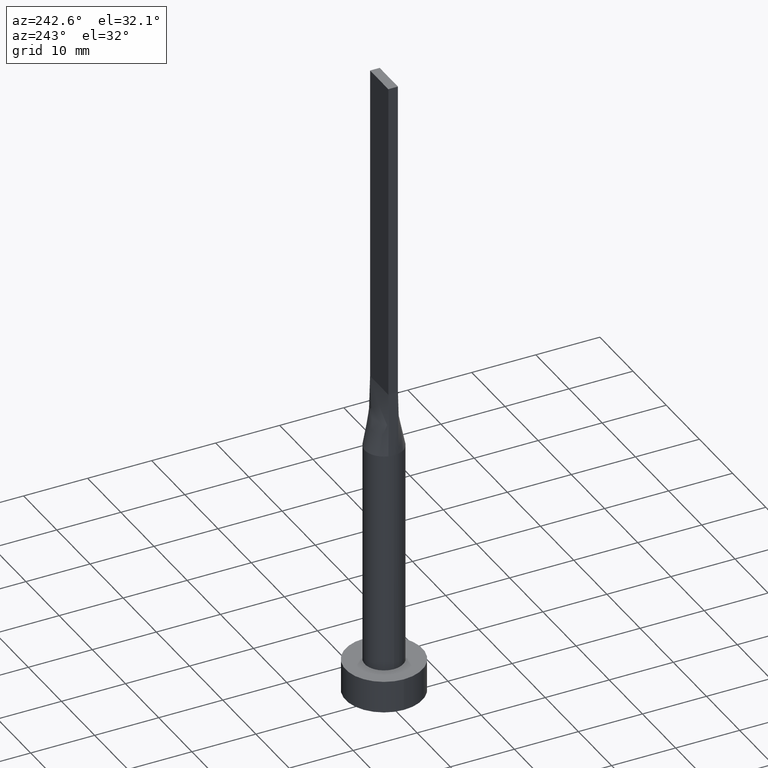
[diagram: clean part render]
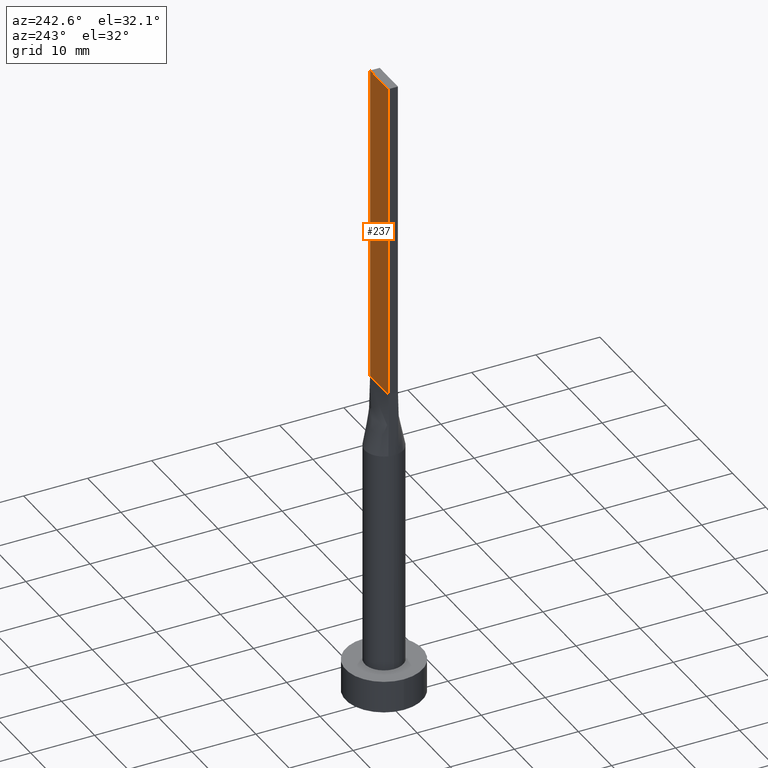
[diagram: same view with one face highlighted and labeled with its STEP entity id]
A machine part, auxiliary view. The second image highlights one B-rep face of the part: STEP entity #237.
In plain terms, the highlighted planar face has unit normal (0, -1, 0).
Its self-contained STEP definition (entity closure, byte-faithful):
#1 = LINE ( 'NONE', #192, #541 ) ;
#10 = AXIS2_PLACEMENT_3D ( 'NONE', #124, #530, #517 ) ;
#11 = CARTESIAN_POINT ( 'NONE',  ( 2.750000000000000000, 0.7500000000000002220, 100.0000000000000000 ) ) ;
#13 = VERTEX_POINT ( 'NONE', #369 ) ;
#27 = CARTESIAN_POINT ( 'NONE',  ( 2.750000000000000000, 0.7500000000000002220, 100.0000000000000000 ) ) ;
#37 = CARTESIAN_POINT ( 'NONE',  ( -2.750000000000000000, 0.7500000000000002220, 100.0000000000000000 ) ) ;
#55 = EDGE_LOOP ( 'NONE', ( #167, #398, #416, #447 ) ) ;
#117 = LINE ( 'NONE', #211, #298 ) ;
#124 = CARTESIAN_POINT ( 'NONE',  ( 2.750000000000000000, 0.7500000000000002220, 100.0000000000000000 ) ) ;
#155 = EDGE_CURVE ( 'NONE', #363, #13, #117, .T. ) ;
#167 = ORIENTED_EDGE ( 'NONE', *, *, #264, .T. ) ;
#192 = CARTESIAN_POINT ( 'NONE',  ( -2.750000000000000000, 0.7500000000000002220, 100.0000000000000000 ) ) ;
#207 = VERTEX_POINT ( 'NONE', #344 ) ;
#211 = CARTESIAN_POINT ( 'NONE',  ( 2.750000000000000000, 0.7500000000000002220, 100.0000000000000000 ) ) ;
#237 = ADVANCED_FACE ( 'NONE', ( #482 ), #486, .F. ) ;
#254 = VERTEX_POINT ( 'NONE', #37 ) ;
#264 = EDGE_CURVE ( 'NONE', #13, #207, #574, .T. ) ;
#266 = VECTOR ( 'NONE', #306, 1000.000000000000000 ) ;
#298 = VECTOR ( 'NONE', #360, 1000.000000000000000 ) ;
#306 = DIRECTION ( 'NONE',  ( -1.000000000000000000, 0.000000000000000000, 0.000000000000000000 ) ) ;
#316 = EDGE_CURVE ( 'NONE', #363, #254, #434, .T. ) ;
#344 = CARTESIAN_POINT ( 'NONE',  ( -2.750000000000000000, 0.7500000000000002220, 50.00000000000000000 ) ) ;
#360 = DIRECTION ( 'NONE',  ( -0.000000000000000000, -0.000000000000000000, -1.000000000000000000 ) ) ;
#363 = VERTEX_POINT ( 'NONE', #11 ) ;
#369 = CARTESIAN_POINT ( 'NONE',  ( 2.750000000000000000, 0.7500000000000002220, 50.00000000000000000 ) ) ;
#398 = ORIENTED_EDGE ( 'NONE', *, *, #446, .F. ) ;
#416 = ORIENTED_EDGE ( 'NONE', *, *, #316, .F. ) ;
#434 = LINE ( 'NONE', #27, #266 ) ;
#446 = EDGE_CURVE ( 'NONE', #254, #207, #1, .T. ) ;
#447 = ORIENTED_EDGE ( 'NONE', *, *, #155, .T. ) ;
#456 = DIRECTION ( 'NONE',  ( -1.000000000000000000, -0.000000000000000000, -0.000000000000000000 ) ) ;
#469 = DIRECTION ( 'NONE',  ( -0.000000000000000000, -0.000000000000000000, -1.000000000000000000 ) ) ;
#470 = VECTOR ( 'NONE', #456, 1000.000000000000000 ) ;
#482 = FACE_OUTER_BOUND ( 'NONE', #55, .T. ) ;
#486 = PLANE ( 'NONE',  #10 ) ;
#517 = DIRECTION ( 'NONE',  ( 0.000000000000000000, -0.000000000000000000, -1.000000000000000000 ) ) ;
#530 = DIRECTION ( 'NONE',  ( 0.000000000000000000, -1.000000000000000000, 0.000000000000000000 ) ) ;
#541 = VECTOR ( 'NONE', #469, 1000.000000000000000 ) ;
#566 = CARTESIAN_POINT ( 'NONE',  ( -2.750000000000000000, 0.7500000000000002220, 50.00000000000000000 ) ) ;
#574 = LINE ( 'NONE', #566, #470 ) ;